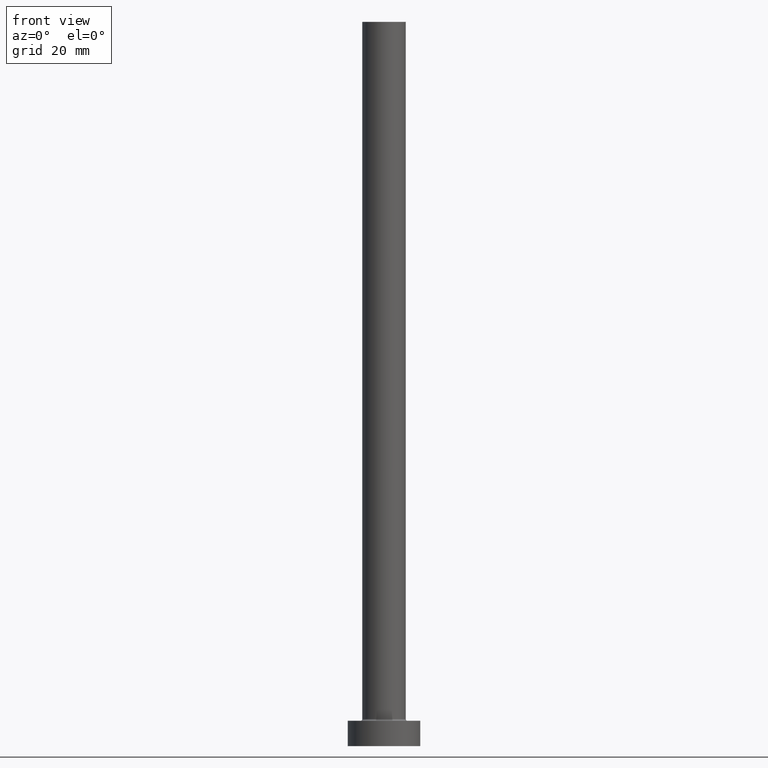
[diagram: clean part render]
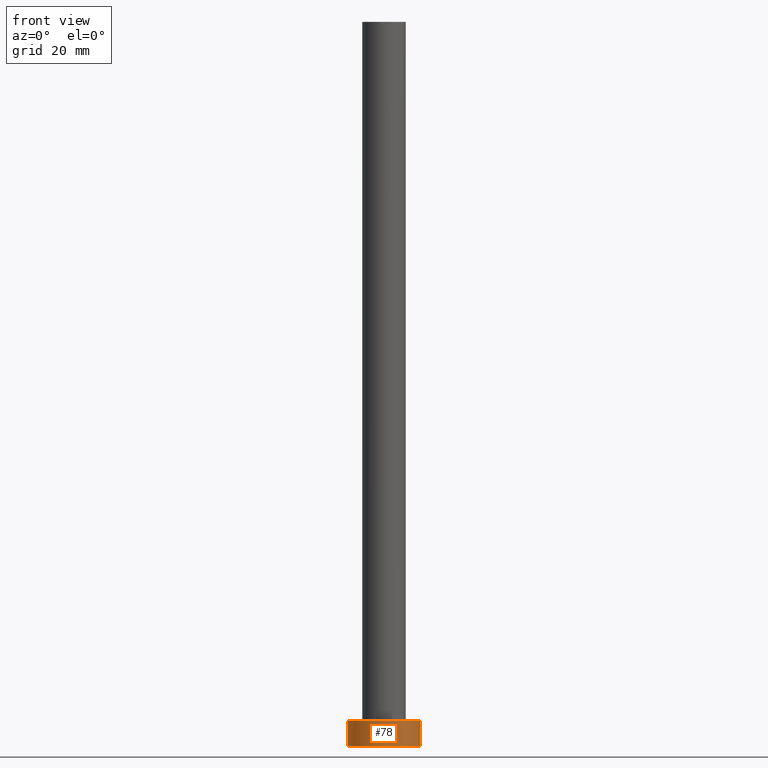
[diagram: same view with one face highlighted and labeled with its STEP entity id]
A machine part, front view. The second image highlights one B-rep face of the part: STEP entity #78.
In plain terms, the highlighted cylindrical surface (edge-blend (fillet) strip) has radius 10 mm, axis along (-0, -0, -1).
Its self-contained STEP definition (entity closure, byte-faithful):
#13 = VERTEX_POINT ( 'NONE', #458 ) ;
#17 = CARTESIAN_POINT ( 'NONE',  ( -10.00000000000000000, 0.000000000000000000, 7.000000000000000000 ) ) ;
#50 = VECTOR ( 'NONE', #369, 1000.000000000000000 ) ;
#73 = DIRECTION ( 'NONE',  ( -1.000000000000000000, 0.000000000000000000, 0.000000000000000000 ) ) ;
#78 = ADVANCED_FACE ( 'NONE', ( #323 ), #86, .T. ) ;
#79 = AXIS2_PLACEMENT_3D ( 'NONE', #268, #263, #99 ) ;
#86 = CYLINDRICAL_SURFACE ( 'NONE', #353, 10.00000000000000000 ) ;
#91 = VERTEX_POINT ( 'NONE', #17 ) ;
#97 = VERTEX_POINT ( 'NONE', #441 ) ;
#98 = ORIENTED_EDGE ( 'NONE', *, *, #311, .T. ) ;
#99 = DIRECTION ( 'NONE',  ( 1.000000000000000000, 0.000000000000000000, 0.000000000000000000 ) ) ;
#120 = CARTESIAN_POINT ( 'NONE',  ( -10.00000000000000000, 0.000000000000000000, 0.000000000000000000 ) ) ;
#122 = AXIS2_PLACEMENT_3D ( 'NONE', #173, #192, #415 ) ;
#136 = LINE ( 'NONE', #165, #50 ) ;
#155 = ORIENTED_EDGE ( 'NONE', *, *, #163, .T. ) ;
#156 = DIRECTION ( 'NONE',  ( -0.000000000000000000, -0.000000000000000000, -1.000000000000000000 ) ) ;
#163 = EDGE_CURVE ( 'NONE', #387, #13, #234, .T. ) ;
#165 = CARTESIAN_POINT ( 'NONE',  ( 10.00000000000000000, 1.224646799147353256E-15, 7.000000000000000000 ) ) ;
#173 = CARTESIAN_POINT ( 'NONE',  ( 0.000000000000000000, 0.000000000000000000, 0.000000000000000000 ) ) ;
#192 = DIRECTION ( 'NONE',  ( 0.000000000000000000, 0.000000000000000000, 1.000000000000000000 ) ) ;
#201 = EDGE_CURVE ( 'NONE', #97, #13, #136, .T. ) ;
#220 = CARTESIAN_POINT ( 'NONE',  ( 0.000000000000000000, 0.000000000000000000, 7.000000000000000000 ) ) ;
#234 = CIRCLE ( 'NONE', #122, 10.00000000000000000 ) ;
#263 = DIRECTION ( 'NONE',  ( 0.000000000000000000, 0.000000000000000000, 1.000000000000000000 ) ) ;
#268 = CARTESIAN_POINT ( 'NONE',  ( 0.000000000000000000, 0.000000000000000000, 7.000000000000000000 ) ) ;
#270 = LINE ( 'NONE', #347, #427 ) ;
#311 = EDGE_CURVE ( 'NONE', #91, #387, #270, .T. ) ;
#323 = FACE_OUTER_BOUND ( 'NONE', #377, .T. ) ;
#324 = EDGE_CURVE ( 'NONE', #91, #97, #359, .T. ) ;
#344 = DIRECTION ( 'NONE',  ( -0.000000000000000000, -0.000000000000000000, -1.000000000000000000 ) ) ;
#347 = CARTESIAN_POINT ( 'NONE',  ( -10.00000000000000000, 0.000000000000000000, 7.000000000000000000 ) ) ;
#353 = AXIS2_PLACEMENT_3D ( 'NONE', #220, #156, #73 ) ;
#359 = CIRCLE ( 'NONE', #79, 10.00000000000000000 ) ;
#367 = ORIENTED_EDGE ( 'NONE', *, *, #324, .F. ) ;
#369 = DIRECTION ( 'NONE',  ( -0.000000000000000000, -0.000000000000000000, -1.000000000000000000 ) ) ;
#377 = EDGE_LOOP ( 'NONE', ( #430, #367, #98, #155 ) ) ;
#387 = VERTEX_POINT ( 'NONE', #120 ) ;
#415 = DIRECTION ( 'NONE',  ( 1.000000000000000000, 0.000000000000000000, 0.000000000000000000 ) ) ;
#427 = VECTOR ( 'NONE', #344, 1000.000000000000000 ) ;
#430 = ORIENTED_EDGE ( 'NONE', *, *, #201, .F. ) ;
#441 = CARTESIAN_POINT ( 'NONE',  ( 10.00000000000000000, 1.224646799147353256E-15, 7.000000000000000000 ) ) ;
#458 = CARTESIAN_POINT ( 'NONE',  ( 10.00000000000000000, 1.224646799147353256E-15, 0.000000000000000000 ) ) ;